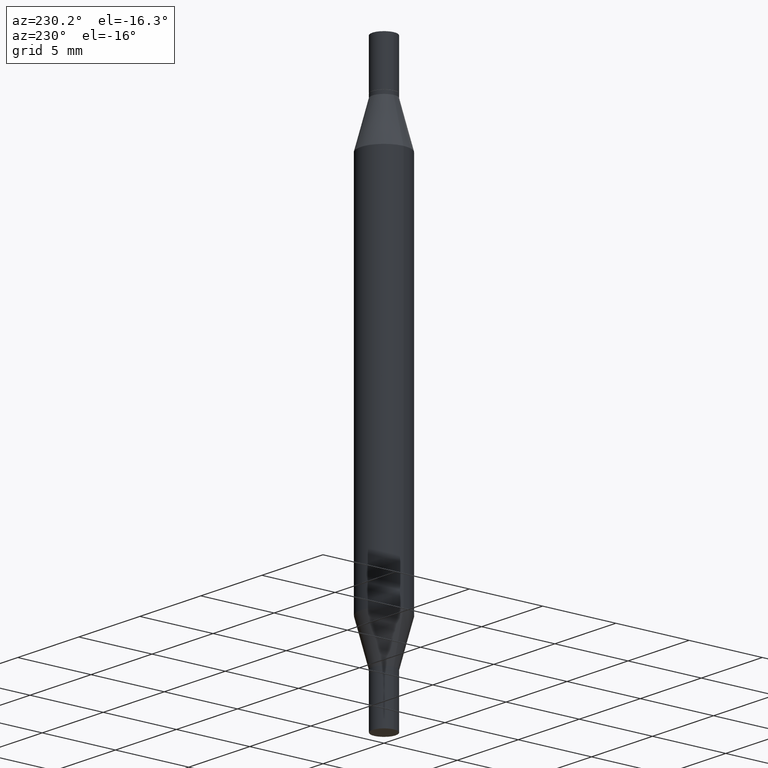
[diagram: clean part render]
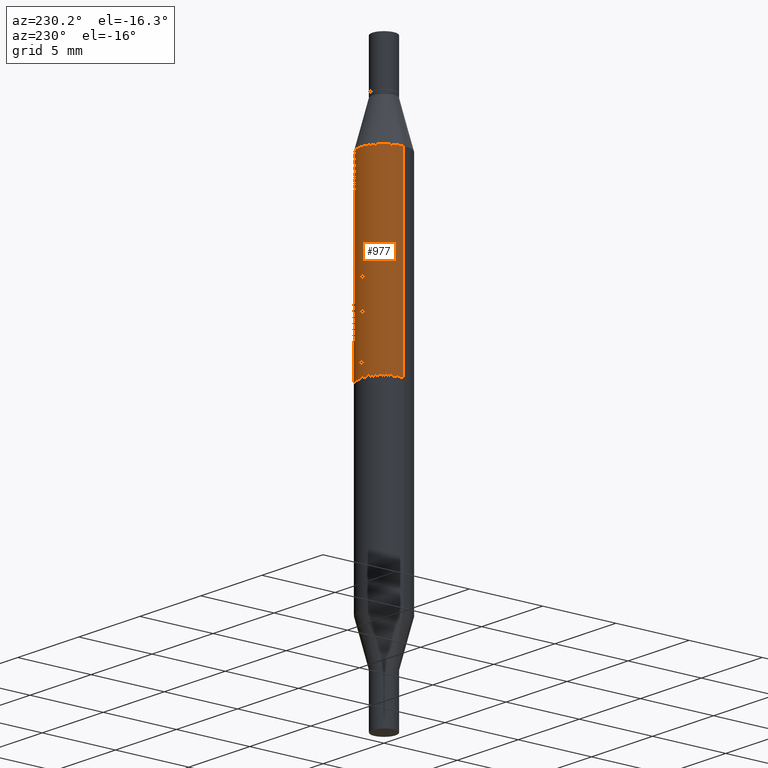
[diagram: same view with one face highlighted and labeled with its STEP entity id]
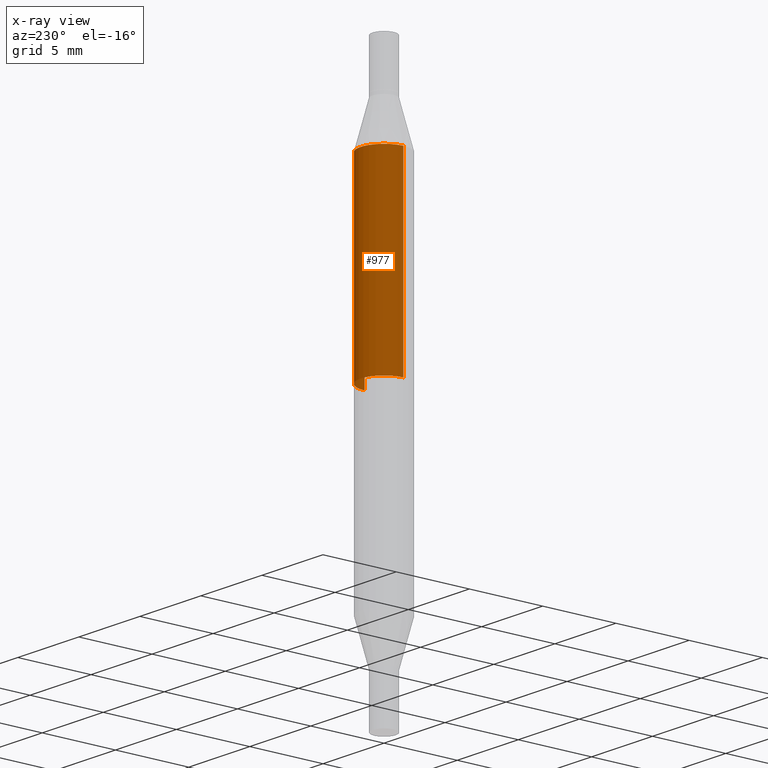
[diagram: x-ray of the same camera — body ghosted, the highlighted face saturated]
A machine part, auxiliary view. The second image highlights one B-rep face of the part: STEP entity #977.
The next image is the same camera in x-ray: the body ghosted, the highlighted face saturated — about 0% of this face is hidden behind the body in this view.
In plain terms, the highlighted cylindrical surface (edge-blend (fillet) strip) has radius 1.5875 mm, axis along (-0, -0, -1).
Its self-contained STEP definition (entity closure, byte-faithful):
#6 = DIRECTION ( 'NONE',  ( -0.000000000000000000, -3.491643216902134830E-15, -1.000000000000000000 ) ) ;
#8 = EDGE_CURVE ( 'NONE', #643, #160, #629, .T. ) ;
#29 = ORIENTED_EDGE ( 'NONE', *, *, #8, .F. ) ;
#54 = DIRECTION ( 'NONE',  ( 1.000000000000000000, -6.982962677686266711E-15, 0.000000000000000000 ) ) ;
#65 = AXIS2_PLACEMENT_3D ( 'NONE', #740, #68, #366 ) ;
#68 = DIRECTION ( 'NONE',  ( -2.445468806185136597E-29, -3.491805094961124077E-15, -1.000000000000000000 ) ) ;
#72 = CYLINDRICAL_SURFACE ( 'NONE', #65, 0.06250000000000000000 ) ;
#88 = CARTESIAN_POINT ( 'NONE',  ( -0.06250000000000000000, -1.319718469204263536E-15, -0.7500000000000001110 ) ) ;
#108 = EDGE_CURVE ( 'NONE', #703, #800, #748, .T. ) ;
#160 = VERTEX_POINT ( 'NONE', #745 ) ;
#208 = CARTESIAN_POINT ( 'NONE',  ( 3.052858238161216211E-29, -8.783881839976099214E-16, -0.2516265877365289061 ) ) ;
#237 = ORIENTED_EDGE ( 'NONE', *, *, #448, .F. ) ;
#240 = LINE ( 'NONE', #931, #636 ) ;
#250 = DIRECTION ( 'NONE',  ( -2.445468806185136877E-29, -3.491805094961123683E-15, -1.000000000000000000 ) ) ;
#271 = CARTESIAN_POINT ( 'NONE',  ( -0.06250000000000000000, -4.496070591368893960E-16, -0.2516265877365289061 ) ) ;
#277 = AXIS2_PLACEMENT_3D ( 'NONE', #380, #6, #904 ) ;
#364 = LINE ( 'NONE', #533, #847 ) ;
#366 = DIRECTION ( 'NONE',  ( 1.000000000000000000, -6.982962677686262766E-15, 0.000000000000000000 ) ) ;
#380 = CARTESIAN_POINT ( 'NONE',  ( 1.834101604638852448E-29, -2.618611004132359088E-15, -0.7500000000000001110 ) ) ;
#388 = AXIS2_PLACEMENT_3D ( 'NONE', #208, #577, #54 ) ;
#394 = CARTESIAN_POINT ( 'NONE',  ( 0.06250000000000000000, -1.314823351353001887E-15, -0.2516265877365289061 ) ) ;
#448 = EDGE_CURVE ( 'NONE', #800, #643, #364, .T. ) ;
#518 = ORIENTED_EDGE ( 'NONE', *, *, #108, .F. ) ;
#533 = CARTESIAN_POINT ( 'NONE',  ( -0.06250000000000000000, -4.808683700492481917E-15, -1.500000000000000222 ) ) ;
#577 = DIRECTION ( 'NONE',  ( 2.445468806185136597E-29, 3.491805094961124077E-15, 1.000000000000000000 ) ) ;
#599 = DIRECTION ( 'NONE',  ( -2.445468806185136877E-29, -3.491805094961123683E-15, -1.000000000000000000 ) ) ;
#619 = ORIENTED_EDGE ( 'NONE', *, *, #623, .T. ) ;
#623 = EDGE_CURVE ( 'NONE', #703, #160, #240, .T. ) ;
#629 = CIRCLE ( 'NONE', #277, 0.06250000000000000000 ) ;
#636 = VECTOR ( 'NONE', #250, 39.37007874015748143 ) ;
#643 = VERTEX_POINT ( 'NONE', #88 ) ;
#703 = VERTEX_POINT ( 'NONE', #394 ) ;
#740 = CARTESIAN_POINT ( 'NONE',  ( 0.000000000000000000, -5.237464825353202639E-15, -1.500000000000000222 ) ) ;
#745 = CARTESIAN_POINT ( 'NONE',  ( 0.06250000000000000000, -2.184934761420375731E-15, -0.7500000000000001110 ) ) ;
#748 = CIRCLE ( 'NONE', #388, 0.06250000000000000000 ) ;
#800 = VERTEX_POINT ( 'NONE', #271 ) ;
#841 = EDGE_LOOP ( 'NONE', ( #237, #518, #619, #29 ) ) ;
#847 = VECTOR ( 'NONE', #599, 39.37007874015748143 ) ;
#901 = FACE_OUTER_BOUND ( 'NONE', #841, .T. ) ;
#904 = DIRECTION ( 'NONE',  ( 0.000000000000000000, 1.000000000000000000, -4.370956789862821150E-15 ) ) ;
#931 = CARTESIAN_POINT ( 'NONE',  ( 0.06250000000000000000, -5.673899992708594309E-15, -1.500000000000000222 ) ) ;
#977 = ADVANCED_FACE ( 'NONE', ( #901 ), #72, .T. ) ;